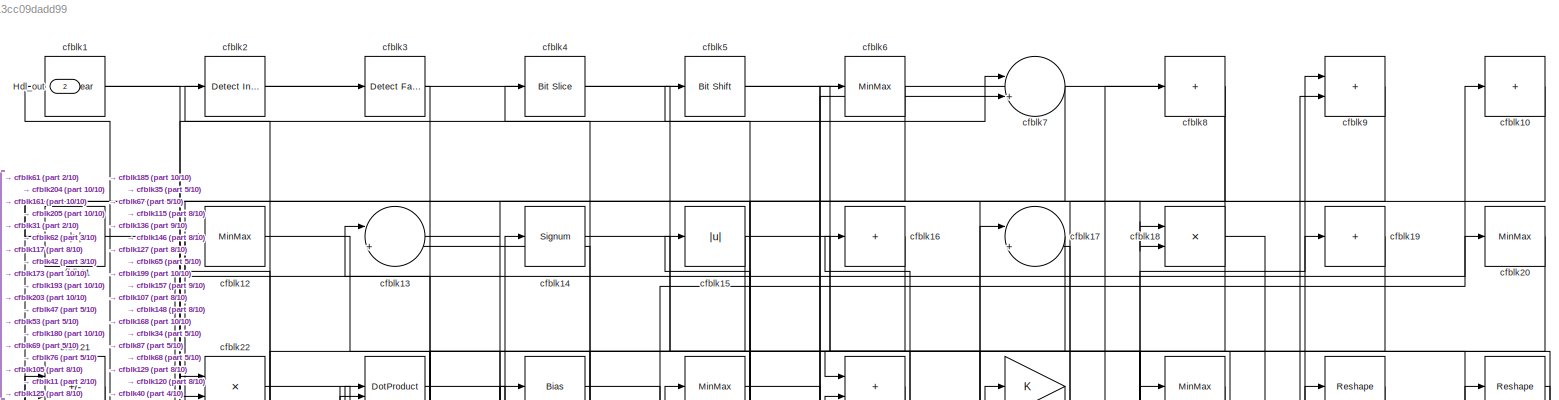
[diagram: root canvas - part 1/10, full width, top band]
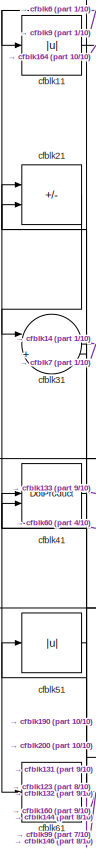
[diagram: root canvas - part 2/10, top left region]
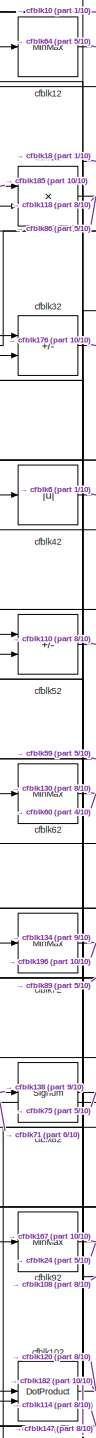
[diagram: root canvas - part 3/10, top left region]
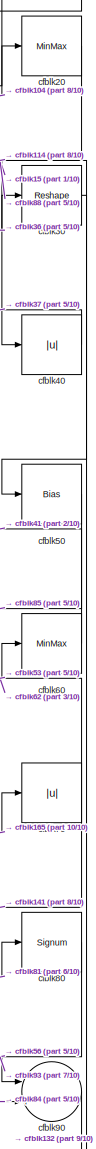
[diagram: root canvas - part 4/10, top right region]
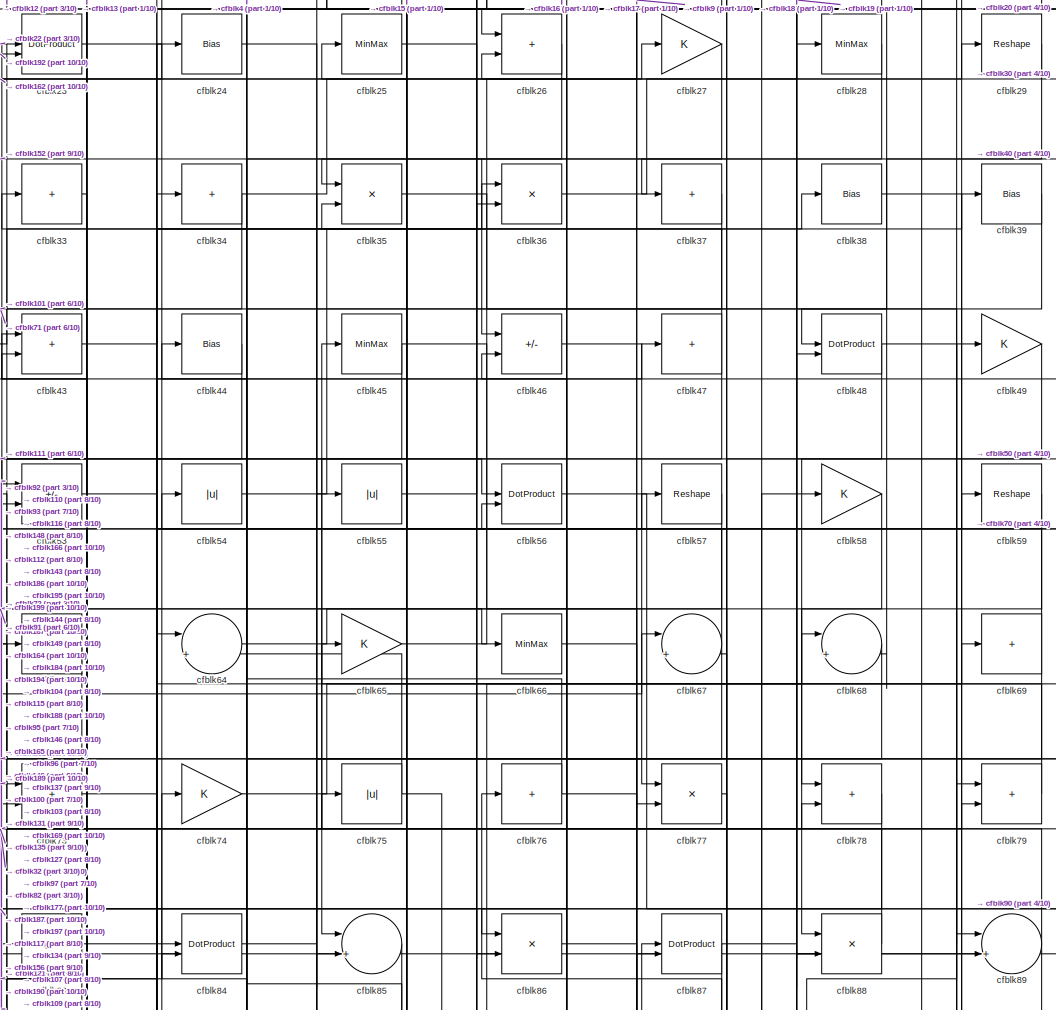
[diagram: root canvas - part 5/10, top center region]
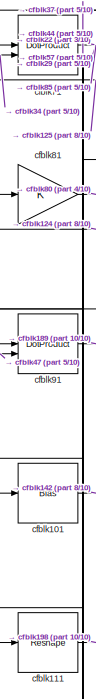
[diagram: root canvas - part 6/10, middle left region]
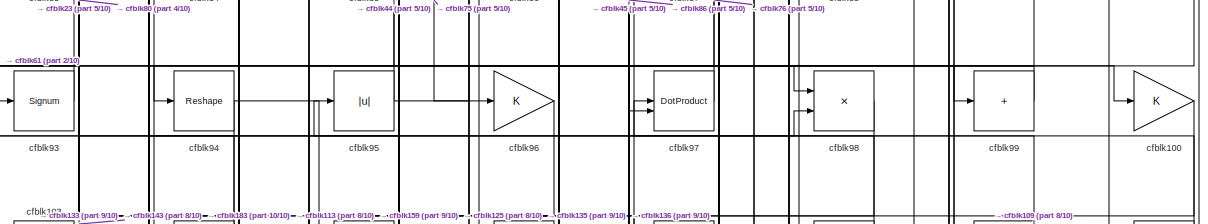
[diagram: root canvas - part 7/10, full width, middle band]
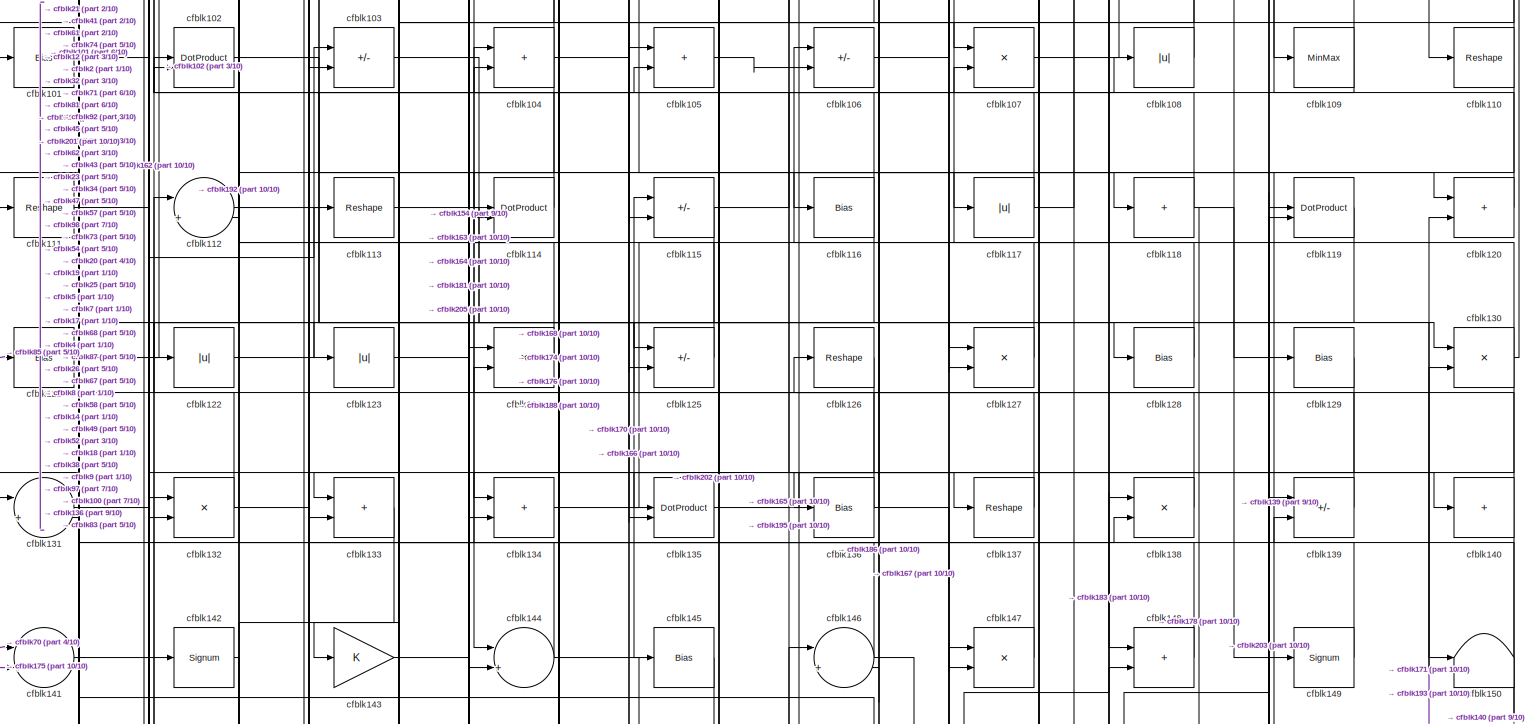
[diagram: root canvas - part 8/10, full width, middle band]
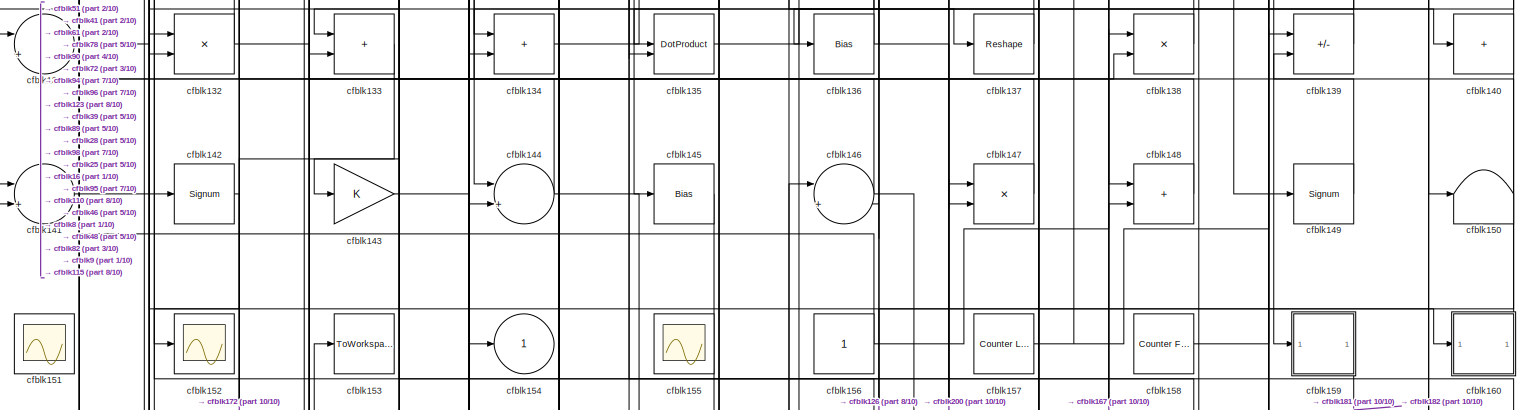
[diagram: root canvas - part 9/10, full width, bottom band]
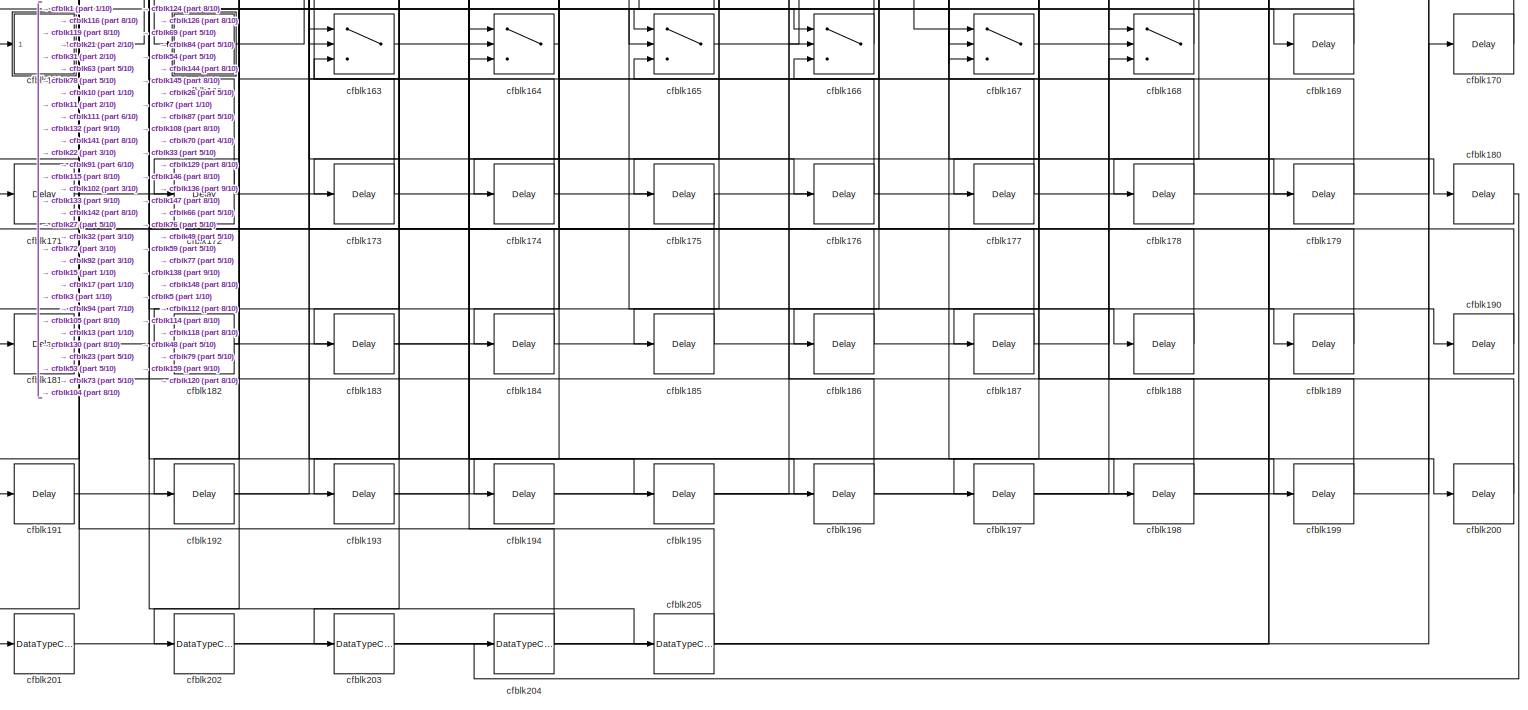
[diagram: root canvas - part 10/10, full width, bottom band]
MODEL slx_13cc09dadd99
KIND model
CONFIG AbsTol = auto
CONFIG EnableMultiTasking = off
CONFIG FixedStep = auto
CONFIG MaxStep = auto
CONFIG MinStep = auto
CONFIG RelTol = 1e-3
CONFIG SampleTimeConstraint = Unconstrained
CONFIG SolverName = VariableStepAuto
CONFIG StartTime = 0.0
CONFIG StopTime = 10.0
BLOCK [Outport] Hdl_out
  OutDataTypeStr = uint8
  Port = 2
BLOCK [Reference] cfblk1  REF=simulink/Logic and Bit
Operations/Bit Clear
  LibrarySourceBlock = hdlsllib/Logic and Bit\nOperations/Bit Clear
  SourceBlock = simulink/Logic and Bit\nOperations/Bit Clear
  SourceType = Bit Clear
BLOCK [Sum] cfblk10
  IconShape = rectangular
  Inputs = +
  OutDataTypeStr = uint8
BLOCK [Gain] cfblk100
  OutDataTypeStr = uint8
BLOCK [Bias] cfblk101
  Bias = 0.0
  SaturateOnIntegerOverflow = off
BLOCK [DotProduct] cfblk102
  OutDataTypeStr = uint8
BLOCK [Sum] cfblk103
  IconShape = rectangular
  Inputs = +-
  OutDataTypeStr = uint8
BLOCK [Sum] cfblk104
  IconShape = rectangular
  OutDataTypeStr = uint8
BLOCK [Sum] cfblk105
  IconShape = rectangular
  OutDataTypeStr = uint8
BLOCK [Sum] cfblk106
  IconShape = rectangular
  Inputs = +-
  OutDataTypeStr = uint8
BLOCK [Product] cfblk107
  Inputs = */
  OutDataTypeStr = uint8
  RndMeth = Zero
  SaturateOnIntegerOverflow = on
BLOCK [Abs] cfblk108
  OutDataTypeStr = uint8
  SaturateOnIntegerOverflow = off
BLOCK [MinMax] cfblk109
  OutDataTypeStr = uint8
BLOCK [Abs] cfblk11
  OutDataTypeStr = uint8
  SaturateOnIntegerOverflow = off
BLOCK [Reshape] cfblk110
BLOCK [Reshape] cfblk111
BLOCK [Sum] cfblk112
  Inputs = |++
  OutDataTypeStr = uint8
BLOCK [Reshape] cfblk113
BLOCK [DotProduct] cfblk114
  OutDataTypeStr = uint8
BLOCK [Sum] cfblk115
  IconShape = rectangular
  Inputs = +-
  OutDataTypeStr = uint8
BLOCK [Bias] cfblk116
  Bias = 0.0
  SaturateOnIntegerOverflow = off
BLOCK [Abs] cfblk117
  OutDataTypeStr = uint8
  SaturateOnIntegerOverflow = off
BLOCK [Sum] cfblk118
  IconShape = rectangular
  Inputs = +
  OutDataTypeStr = uint8
BLOCK [DotProduct] cfblk119
  OutDataTypeStr = uint8
BLOCK [MinMax] cfblk12
  OutDataTypeStr = uint8
BLOCK [Sum] cfblk120
  IconShape = rectangular
  OutDataTypeStr = uint8
BLOCK [Bias] cfblk121
  Bias = 0.0
  SaturateOnIntegerOverflow = off
BLOCK [Abs] cfblk122
  OutDataTypeStr = uint8
  SaturateOnIntegerOverflow = off
BLOCK [Abs] cfblk123
  OutDataTypeStr = uint8
  SaturateOnIntegerOverflow = off
BLOCK [Product] cfblk124
  Inputs = */
  OutDataTypeStr = uint8
  RndMeth = Zero
  SaturateOnIntegerOverflow = on
BLOCK [Sum] cfblk125
  IconShape = rectangular
  Inputs = +-
  OutDataTypeStr = uint8
BLOCK [Reshape] cfblk126
BLOCK [Product] cfblk127
  Inputs = */
  OutDataTypeStr = uint8
  RndMeth = Zero
  SaturateOnIntegerOverflow = on
BLOCK [Bias] cfblk128
  Bias = 0.0
  SaturateOnIntegerOverflow = off
BLOCK [Bias] cfblk129
  Bias = 0.0
  SaturateOnIntegerOverflow = off
BLOCK [Sum] cfblk13
  Inputs = |++
  OutDataTypeStr = uint8
BLOCK [Product] cfblk130
  Inputs = */
  OutDataTypeStr = uint8
  RndMeth = Zero
  SaturateOnIntegerOverflow = on
BLOCK [Sum] cfblk131
  Inputs = |++
  OutDataTypeStr = uint8
BLOCK [Product] cfblk132
  Inputs = */
  OutDataTypeStr = uint8
  RndMeth = Zero
  SaturateOnIntegerOverflow = on
BLOCK [Sum] cfblk133
  IconShape = rectangular
  OutDataTypeStr = uint8
BLOCK [Sum] cfblk134
  IconShape = rectangular
  OutDataTypeStr = uint8
BLOCK [DotProduct] cfblk135
  OutDataTypeStr = uint8
BLOCK [Bias] cfblk136
  Bias = 0.0
  SaturateOnIntegerOverflow = off
BLOCK [Reshape] cfblk137
BLOCK [Product] cfblk138
  Inputs = */
  OutDataTypeStr = uint8
  RndMeth = Zero
  SaturateOnIntegerOverflow = on
BLOCK [Sum] cfblk139
  IconShape = rectangular
  Inputs = +-
  OutDataTypeStr = uint8
BLOCK [Signum] cfblk14
BLOCK [Sum] cfblk140
  IconShape = rectangular
  Inputs = +
  OutDataTypeStr = uint8
BLOCK [Sum] cfblk141
  Inputs = |++
  OutDataTypeStr = uint8
BLOCK [Signum] cfblk142
BLOCK [Gain] cfblk143
  OutDataTypeStr = uint8
BLOCK [Sum] cfblk144
  Inputs = |++
  OutDataTypeStr = uint8
BLOCK [Bias] cfblk145
  Bias = 0.0
  SaturateOnIntegerOverflow = off
BLOCK [Sum] cfblk146
  Inputs = |++
  OutDataTypeStr = uint8
BLOCK [Product] cfblk147
  Inputs = */
  OutDataTypeStr = uint8
  RndMeth = Zero
  SaturateOnIntegerOverflow = on
BLOCK [Sum] cfblk148
  IconShape = rectangular
  OutDataTypeStr = uint8
BLOCK [Signum] cfblk149
BLOCK [Abs] cfblk15
  OutDataTypeStr = uint8
  SaturateOnIntegerOverflow = off
BLOCK [Terminator] cfblk150
BLOCK [Scope] cfblk151
  Floating = on
  NumInputPorts = 1
  ScopeSpecificationString = Simulink.scopes.TimeScopeBlockCfg('CurrentConfiguration', extmgr.ConfigurationSet(extmgr.Configuration('Core','General UI',true,'FigureColor',[0.156862745098039 0.156862745098039 0.156862745098039]),extmgr.Configuration('Core','Source UI',true),extmgr.Configuration('Sources','WiredSimulink',true,'DataLoggingVariableName','ScopeData1','DataLoggingSaveFormat','StructureWithTime','DataLoggingLimitDat...<+2713ch>
BLOCK [Scope] cfblk152
  Floating = off
  NumInputPorts = 1
  ScopeSpecificationString = Simulink.scopes.TimeScopeBlockCfg('CurrentConfiguration', extmgr.ConfigurationSet(extmgr.Configuration('Core','General UI',true),extmgr.Configuration('Core','Source UI',true),extmgr.Configuration('Sources','WiredSimulink',true,'DataLoggingVariableName','ScopeData2','DataLoggingSaveFormat','Array','DataLoggingLimitDataPoints',true,'DataLoggingDecimation','1'),extmgr.Configuration('Visuals','Time Do...<+868ch>
BLOCK [ToWorkspace] cfblk153
  MaxDataPoints = inf
  SampleTime = -1
  SaveFormat = Timeseries
  VariableName = simout
BLOCK [Outport] cfblk154
  OutDataTypeStr = uint8
  VectorParamsAs1DForOutWhenUnconnected = off
BLOCK [Scope] cfblk155
  Floating = on
  NumInputPorts = 1
  ScopeSpecificationString = Simulink.scopes.TimeScopeBlockCfg('CurrentConfiguration', extmgr.ConfigurationSet(extmgr.Configuration('Core','General UI',true,'FigureColor',[0.156862745098039 0.156862745098039 0.156862745098039]),extmgr.Configuration('Core','Source UI',true),extmgr.Configuration('Sources','WiredSimulink',true,'DataLoggingVariableName','ScopeData1','DataLoggingSaveFormat','StructureWithTime','DataLoggingLimitDat...<+2713ch>
BLOCK [Constant] cfblk156
  OutDataTypeStr = uint8
  SampleTime = -1
BLOCK [Reference] cfblk157  REF=hdlsllib/Sources/Counter
Limited
  SourceBlock = hdlsllib/Sources/Counter\nLimited
  SourceType = Counter Limited
BLOCK [Reference] cfblk158  REF=hdlsllib/Sources/Counter
Free-Running
  SourceBlock = hdlsllib/Sources/Counter\nFree-Running
  SourceType = Counter Free-Running
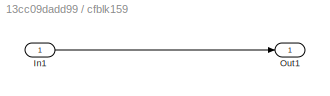
BLOCK [SubSystem] cfblk159
  LibrarySourceBlock = hdlsllib/Ports &\nSubsystems/Subsystem
BLOCK [Inport] cfblk159/In1
BLOCK [Outport] cfblk159/Out1
BLOCK [Sum] cfblk16
  IconShape = rectangular
  Inputs = +
  OutDataTypeStr = uint8
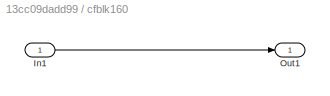
BLOCK [SubSystem] cfblk160
  LibrarySourceBlock = hdlsllib/Ports &\nSubsystems/Subsystem
BLOCK [Inport] cfblk160/In1
BLOCK [Outport] cfblk160/Out1
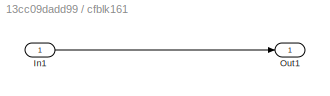
BLOCK [SubSystem] cfblk161
  LibrarySourceBlock = hdlsllib/Ports &\nSubsystems/Subsystem
BLOCK [Inport] cfblk161/In1
BLOCK [Outport] cfblk161/Out1
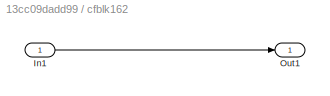
BLOCK [SubSystem] cfblk162
  LibrarySourceBlock = hdlsllib/Ports &\nSubsystems/Subsystem
BLOCK [Inport] cfblk162/In1
BLOCK [Outport] cfblk162/Out1
BLOCK [Switch] cfblk163
  InputSameDT = off
  OutDataTypeStr = uint8
  SaturateOnIntegerOverflow = off
BLOCK [Switch] cfblk164
  InputSameDT = off
  OutDataTypeStr = uint8
  SaturateOnIntegerOverflow = off
BLOCK [Switch] cfblk165
  InputSameDT = off
  OutDataTypeStr = uint8
  SaturateOnIntegerOverflow = off
BLOCK [Switch] cfblk166
  InputSameDT = off
  OutDataTypeStr = uint8
  SaturateOnIntegerOverflow = off
BLOCK [Switch] cfblk167
  InputSameDT = off
  OutDataTypeStr = uint8
  SaturateOnIntegerOverflow = off
BLOCK [Switch] cfblk168
  InputSameDT = off
  OutDataTypeStr = uint8
  SaturateOnIntegerOverflow = off
BLOCK [Delay] cfblk169
  InputPortMap = u0
  SampleTime = 1
BLOCK [Sum] cfblk17
  Inputs = |++
  OutDataTypeStr = uint8
BLOCK [Delay] cfblk170
  InputPortMap = u0
  SampleTime = 1
BLOCK [Delay] cfblk171
  InputPortMap = u0
  SampleTime = 1
BLOCK [Delay] cfblk172
  InputPortMap = u0
  SampleTime = 1
BLOCK [Delay] cfblk173
  InputPortMap = u0
  SampleTime = 1
BLOCK [Delay] cfblk174
  InputPortMap = u0
  SampleTime = 1
BLOCK [Delay] cfblk175
  InputPortMap = u0
  SampleTime = 1
BLOCK [Delay] cfblk176
  InputPortMap = u0
  SampleTime = 1
BLOCK [Delay] cfblk177
  InputPortMap = u0
  SampleTime = 1
BLOCK [Delay] cfblk178
  InputPortMap = u0
  SampleTime = 1
BLOCK [Delay] cfblk179
  InputPortMap = u0
  SampleTime = 1
BLOCK [Product] cfblk18
  Inputs = */
  OutDataTypeStr = uint8
  RndMeth = Zero
  SaturateOnIntegerOverflow = on
BLOCK [Delay] cfblk180
  InputPortMap = u0
  SampleTime = 1
BLOCK [Delay] cfblk181
  InputPortMap = u0
  SampleTime = 1
BLOCK [Delay] cfblk182
  InputPortMap = u0
  SampleTime = 1
BLOCK [Delay] cfblk183
  InputPortMap = u0
  SampleTime = 1
BLOCK [Delay] cfblk184
  InputPortMap = u0
  SampleTime = 1
BLOCK [Delay] cfblk185
  InputPortMap = u0
  SampleTime = 1
BLOCK [Delay] cfblk186
  InputPortMap = u0
  SampleTime = 1
BLOCK [Delay] cfblk187
  InputPortMap = u0
  SampleTime = 1
BLOCK [Delay] cfblk188
  InputPortMap = u0
  SampleTime = 1
BLOCK [Delay] cfblk189
  InputPortMap = u0
  SampleTime = 1
BLOCK [Sum] cfblk19
  IconShape = rectangular
  Inputs = +
  OutDataTypeStr = uint8
BLOCK [Delay] cfblk190
  InputPortMap = u0
  SampleTime = 1
BLOCK [Delay] cfblk191
  InputPortMap = u0
  SampleTime = 1
BLOCK [Delay] cfblk192
  InputPortMap = u0
  SampleTime = 1
BLOCK [Delay] cfblk193
  InputPortMap = u0
  SampleTime = 1
BLOCK [Delay] cfblk194
  InputPortMap = u0
  SampleTime = 1
BLOCK [Delay] cfblk195
  InputPortMap = u0
  SampleTime = 1
BLOCK [Delay] cfblk196
  InputPortMap = u0
  SampleTime = 1
BLOCK [Delay] cfblk197
  InputPortMap = u0
  SampleTime = 1
BLOCK [Delay] cfblk198
  InputPortMap = u0
  SampleTime = 1
BLOCK [Delay] cfblk199
  InputPortMap = u0
  SampleTime = 1
BLOCK [Reference] cfblk2  REF=simulink/Logic and Bit
Operations/Detect
Increase
  LibrarySourceBlock = hdlsllib/Logic and Bit\nOperations/Detect\nIncrease
  SourceBlock = simulink/Logic and Bit\nOperations/Detect\nIncrease
  SourceType = Detect Increase
BLOCK [MinMax] cfblk20
  OutDataTypeStr = uint8
BLOCK [Delay] cfblk200
  InputPortMap = u0
  SampleTime = 1
BLOCK [DataTypeConversion] cfblk201
  OutDataTypeStr = uint8
  RndMeth = Floor
  SaturateOnIntegerOverflow = off
BLOCK [DataTypeConversion] cfblk202
  OutDataTypeStr = uint8
  RndMeth = Floor
  SaturateOnIntegerOverflow = off
BLOCK [DataTypeConversion] cfblk203
  OutDataTypeStr = uint8
  RndMeth = Floor
  SaturateOnIntegerOverflow = off
BLOCK [DataTypeConversion] cfblk204
  OutDataTypeStr = uint8
  RndMeth = Floor
  SaturateOnIntegerOverflow = off
BLOCK [DataTypeConversion] cfblk205
  OutDataTypeStr = uint8
  RndMeth = Floor
  SaturateOnIntegerOverflow = off
BLOCK [Sum] cfblk21
  IconShape = rectangular
  Inputs = +-
  OutDataTypeStr = uint8
BLOCK [Product] cfblk22
  Inputs = */
  OutDataTypeStr = uint8
  RndMeth = Zero
  SaturateOnIntegerOverflow = on
BLOCK [DotProduct] cfblk23
  OutDataTypeStr = uint8
BLOCK [Bias] cfblk24
  Bias = 0.0
  SaturateOnIntegerOverflow = off
BLOCK [MinMax] cfblk25
  OutDataTypeStr = uint8
BLOCK [Sum] cfblk26
  IconShape = rectangular
  OutDataTypeStr = uint8
BLOCK [Gain] cfblk27
  OutDataTypeStr = uint8
BLOCK [MinMax] cfblk28
  OutDataTypeStr = uint8
BLOCK [Reshape] cfblk29
BLOCK [Reference] cfblk3  REF=hdlsllib/Logic and Bit
Operations/Detect Fall
Negative
  SourceBlock = hdlsllib/Logic and Bit\nOperations/Detect Fall\nNegative
  SourceType = Detect Fall Negative
BLOCK [Reshape] cfblk30
BLOCK [Sum] cfblk31
  Inputs = |++
  OutDataTypeStr = uint8
BLOCK [Sum] cfblk32
  IconShape = rectangular
  Inputs = +-
  OutDataTypeStr = uint8
BLOCK [Sum] cfblk33
  IconShape = rectangular
  Inputs = +
  OutDataTypeStr = uint8
BLOCK [Sum] cfblk34
  IconShape = rectangular
  Inputs = +
  OutDataTypeStr = uint8
BLOCK [Product] cfblk35
  Inputs = */
  OutDataTypeStr = uint8
  RndMeth = Zero
  SaturateOnIntegerOverflow = on
BLOCK [Product] cfblk36
  Inputs = */
  OutDataTypeStr = uint8
  RndMeth = Zero
  SaturateOnIntegerOverflow = on
BLOCK [Sum] cfblk37
  IconShape = rectangular
  Inputs = +
  OutDataTypeStr = uint8
BLOCK [Bias] cfblk38
  Bias = 0.0
  SaturateOnIntegerOverflow = off
BLOCK [Bias] cfblk39
  Bias = 0.0
  SaturateOnIntegerOverflow = off
BLOCK [Reference] cfblk4  REF=hdlsllib/Logic and Bit
Operations/Bit Slice
  SourceBlock = hdlsllib/Logic and Bit\nOperations/Bit Slice
  SourceType = Bit Slice
BLOCK [Abs] cfblk40
  OutDataTypeStr = uint8
  SaturateOnIntegerOverflow = off
BLOCK [DotProduct] cfblk41
  OutDataTypeStr = uint8
BLOCK [Abs] cfblk42
  OutDataTypeStr = uint8
  SaturateOnIntegerOverflow = off
BLOCK [Sum] cfblk43
  IconShape = rectangular
  OutDataTypeStr = uint8
BLOCK [Bias] cfblk44
  Bias = 0.0
  SaturateOnIntegerOverflow = off
BLOCK [MinMax] cfblk45
  OutDataTypeStr = uint8
BLOCK [Sum] cfblk46
  IconShape = rectangular
  Inputs = +-
  OutDataTypeStr = uint8
BLOCK [Sum] cfblk47
  IconShape = rectangular
  Inputs = +
  OutDataTypeStr = uint8
BLOCK [DotProduct] cfblk48
  OutDataTypeStr = uint8
BLOCK [Gain] cfblk49
  OutDataTypeStr = uint8
BLOCK [Reference] cfblk5  REF=hdlsllib/Logic and Bit
Operations/Bit Shift
  SourceBlock = hdlsllib/Logic and Bit\nOperations/Bit Shift
  SourceType = Bit Shift
BLOCK [Bias] cfblk50
  Bias = 0.0
  SaturateOnIntegerOverflow = off
BLOCK [Abs] cfblk51
  OutDataTypeStr = uint8
  SaturateOnIntegerOverflow = off
BLOCK [Sum] cfblk52
  IconShape = rectangular
  Inputs = +-
  OutDataTypeStr = uint8
BLOCK [Sum] cfblk53
  IconShape = rectangular
  Inputs = +-
  OutDataTypeStr = uint8
BLOCK [Abs] cfblk54
  OutDataTypeStr = uint8
  SaturateOnIntegerOverflow = off
BLOCK [Abs] cfblk55
  OutDataTypeStr = uint8
  SaturateOnIntegerOverflow = off
BLOCK [DotProduct] cfblk56
  OutDataTypeStr = uint8
BLOCK [Reshape] cfblk57
BLOCK [Gain] cfblk58
  OutDataTypeStr = uint8
BLOCK [Reshape] cfblk59
BLOCK [MinMax] cfblk6
  OutDataTypeStr = uint8
BLOCK [MinMax] cfblk60
  OutDataTypeStr = uint8
BLOCK [Reshape] cfblk61
BLOCK [MinMax] cfblk62
  OutDataTypeStr = uint8
BLOCK [Bias] cfblk63
  Bias = 0.0
  SaturateOnIntegerOverflow = off
BLOCK [Sum] cfblk64
  Inputs = |++
  OutDataTypeStr = uint8
BLOCK [Gain] cfblk65
  OutDataTypeStr = uint8
BLOCK [MinMax] cfblk66
  OutDataTypeStr = uint8
BLOCK [Sum] cfblk67
  Inputs = |++
  OutDataTypeStr = uint8
BLOCK [Sum] cfblk68
  Inputs = |++
  OutDataTypeStr = uint8
BLOCK [Sum] cfblk69
  IconShape = rectangular
  Inputs = +
  OutDataTypeStr = uint8
BLOCK [Sum] cfblk7
  Inputs = |++
  OutDataTypeStr = uint8
BLOCK [Abs] cfblk70
  OutDataTypeStr = uint8
  SaturateOnIntegerOverflow = off
BLOCK [DotProduct] cfblk71
  OutDataTypeStr = uint8
BLOCK [MinMax] cfblk72
  OutDataTypeStr = uint8
BLOCK [Sum] cfblk73
  IconShape = rectangular
  OutDataTypeStr = uint8
BLOCK [Gain] cfblk74
  OutDataTypeStr = uint8
BLOCK [Abs] cfblk75
  OutDataTypeStr = uint8
  SaturateOnIntegerOverflow = off
BLOCK [Sum] cfblk76
  IconShape = rectangular
  Inputs = +
  OutDataTypeStr = uint8
BLOCK [Product] cfblk77
  Inputs = */
  OutDataTypeStr = uint8
  RndMeth = Zero
  SaturateOnIntegerOverflow = on
BLOCK [Sum] cfblk78
  IconShape = rectangular
  OutDataTypeStr = uint8
BLOCK [Sum] cfblk79
  IconShape = rectangular
  OutDataTypeStr = uint8
BLOCK [Sum] cfblk8
  IconShape = rectangular
  Inputs = +
  OutDataTypeStr = uint8
BLOCK [Signum] cfblk80
BLOCK [Gain] cfblk81
  OutDataTypeStr = uint8
BLOCK [Signum] cfblk82
BLOCK [Signum] cfblk83
BLOCK [DotProduct] cfblk84
  OutDataTypeStr = uint8
BLOCK [Sum] cfblk85
  Inputs = |++
  OutDataTypeStr = uint8
BLOCK [Product] cfblk86
  Inputs = */
  OutDataTypeStr = uint8
  RndMeth = Zero
  SaturateOnIntegerOverflow = on
BLOCK [DotProduct] cfblk87
  OutDataTypeStr = uint8
BLOCK [Product] cfblk88
  Inputs = */
  OutDataTypeStr = uint8
  RndMeth = Zero
  SaturateOnIntegerOverflow = on
BLOCK [Sum] cfblk89
  Inputs = |++
  OutDataTypeStr = uint8
BLOCK [Sum] cfblk9
  IconShape = rectangular
  OutDataTypeStr = uint8
BLOCK [Sum] cfblk90
  Inputs = |++
  OutDataTypeStr = uint8
BLOCK [DotProduct] cfblk91
  OutDataTypeStr = uint8
BLOCK [MinMax] cfblk92
  OutDataTypeStr = uint8
BLOCK [Signum] cfblk93
BLOCK [Reshape] cfblk94
BLOCK [Abs] cfblk95
  OutDataTypeStr = uint8
  SaturateOnIntegerOverflow = off
BLOCK [Gain] cfblk96
  OutDataTypeStr = uint8
BLOCK [DotProduct] cfblk97
  OutDataTypeStr = uint8
BLOCK [Product] cfblk98
  Inputs = */
  OutDataTypeStr = uint8
  RndMeth = Zero
  SaturateOnIntegerOverflow = on
BLOCK [Sum] cfblk99
  IconShape = rectangular
  Inputs = +
  OutDataTypeStr = uint8
LINE cfblk100:1 -> cfblk143:1
LINE cfblk101:1 -> cfblk142:1
NET cfblk102:1 -> cfblk120:1, cfblk145:1
NET cfblk103:1 -> cfblk150:1, cfblk57:1
NET cfblk104:1 -> cfblk122:1, cfblk20:1, cfblk73:2
NET cfblk105:1 -> cfblk106:2, cfblk5:1
LINE cfblk106:1 -> cfblk87:2
LINE cfblk107:1 -> cfblk49:1
LINE cfblk108:1 -> cfblk52:1
NET cfblk109:1 -> cfblk107:2, cfblk97:1
LINE cfblk10:1 -> cfblk62:1
NET cfblk110:1 -> cfblk136:1, cfblk83:1
LINE cfblk111:1 -> cfblk198:1
NET cfblk112:1 -> cfblk12:1, cfblk147:2, cfblk34:1
NET cfblk113:1 -> cfblk128:1, cfblk98:2
LINE cfblk114:1 -> cfblk52:2
NET cfblk115:1 -> cfblk162:1, cfblk7:2
NET cfblk116:1 -> cfblk191:1, cfblk43:1
NET cfblk117:1 -> cfblk2:1, cfblk58:1, cfblk92:1
NET cfblk118:1 -> cfblk149:1, cfblk178:1, cfblk32:2
LINE cfblk119:1 -> cfblk201:1
LINE cfblk11:1 -> cfblk164:2
LINE cfblk120:1 -> cfblk9:1
NET cfblk121:1 -> cfblk67:1, cfblk74:1
LINE cfblk122:1 -> cfblk103:1
LINE cfblk123:1 -> cfblk154:1
LINE cfblk124:1 -> cfblk81:1
LINE cfblk125:1 -> cfblk71:1
LINE cfblk126:1 -> cfblk174:1
LINE cfblk127:1 -> cfblk87:1
LINE cfblk128:1 -> cfblk106:1
LINE cfblk129:1 -> cfblk186:1
LINE cfblk12:1 -> cfblk64:1
NET cfblk130:1 -> cfblk164:3, cfblk26:1, cfblk67:2
LINE cfblk131:1 -> cfblk78:2
NET cfblk132:1 -> cfblk138:2, cfblk51:1
LINE cfblk133:1 -> cfblk172:1
LINE cfblk134:1 -> cfblk28:1
LINE cfblk135:1 -> cfblk137:1
NET cfblk136:1 -> cfblk16:1, cfblk200:1, cfblk95:1
LINE cfblk137:1 -> cfblk46:2
LINE cfblk138:1 -> cfblk82:1
LINE cfblk139:1 -> cfblk115:1
NET cfblk13:1 -> cfblk180:1, cfblk18:2
NET cfblk140:1 -> cfblk126:1, cfblk153:1
NET cfblk141:1 -> cfblk113:1, cfblk163:2
LINE cfblk142:1 -> cfblk192:1
LINE cfblk143:1 -> cfblk47:1
NET cfblk144:1 -> cfblk166:1, cfblk41:2
LINE cfblk145:1 -> cfblk202:1
NET cfblk146:1 -> cfblk167:1, cfblk21:1, cfblk25:1
LINE cfblk147:1 -> cfblk102:1
NET cfblk148:1 -> cfblk104:1, cfblk43:2
LINE cfblk149:1 -> cfblk54:1
LINE cfblk14:1 -> cfblk148:1
NET cfblk156:1 -> cfblk131:2, cfblk48:2
NET cfblk157:1 -> cfblk8:1, cfblk9:2
LINE cfblk158:1 -> cfblk139:1
LINE cfblk159/In1:1 -> cfblk159/Out1:1
NET cfblk159:1 -> cfblk181:1, cfblk182:1
NET cfblk15:1 -> cfblk193:1, cfblk40:1
LINE cfblk160/In1:1 -> cfblk160/Out1:1
LINE cfblk160:1 -> cfblk139:2
LINE cfblk161/In1:1 -> cfblk161/Out1:1
LINE cfblk161:1 -> cfblk10:1
LINE cfblk162/In1:1 -> cfblk162/Out1:1
LINE cfblk162:1 -> cfblk27:1
LINE cfblk163:1 -> cfblk105:2
LINE cfblk164:1 -> cfblk84:2
NET cfblk165:1 -> cfblk108:1, cfblk70:1
LINE cfblk166:1 -> cfblk33:1
LINE cfblk167:1 -> cfblk138:1
NET cfblk168:1 -> cfblk112:1, cfblk114:2
LINE cfblk169:1 -> cfblk165:2
LINE cfblk16:1 -> cfblk53:1
LINE cfblk170:1 -> cfblk105:1
LINE cfblk171:1 -> cfblk130:2
LINE cfblk172:1 -> cfblk132:1
LINE cfblk173:1 -> cfblk163:1
LINE cfblk174:1 -> cfblk112:2
LINE cfblk175:1 -> cfblk141:2
LINE cfblk176:1 -> cfblk124:2
LINE cfblk177:1 -> cfblk166:3
LINE cfblk178:1 -> cfblk147:1
LINE cfblk179:1 -> cfblk165:3
NET cfblk17:1 -> cfblk146:2, cfblk173:1
LINE cfblk180:1 -> cfblk204:1
LINE cfblk181:1 -> cfblk144:2
LINE cfblk182:1 -> cfblk102:2
LINE cfblk183:1 -> cfblk148:2
LINE cfblk184:1 -> cfblk163:3
LINE cfblk185:1 -> cfblk22:1
LINE cfblk186:1 -> cfblk84:1
LINE cfblk187:1 -> cfblk26:2
LINE cfblk188:1 -> cfblk104:2
LINE cfblk189:1 -> cfblk73:1
NET cfblk18:1 -> Hdl_out:1, cfblk129:1, cfblk42:1
LINE cfblk190:1 -> cfblk21:2
LINE cfblk191:1 -> cfblk164:1
LINE cfblk192:1 -> cfblk23:2
LINE cfblk193:1 -> cfblk120:2
LINE cfblk194:1 -> cfblk79:1
LINE cfblk195:1 -> cfblk146:1
LINE cfblk196:1 -> cfblk166:2
LINE cfblk197:1 -> cfblk168:3
LINE cfblk198:1 -> cfblk168:2
LINE cfblk199:1 -> cfblk17:2
NET cfblk19:1 -> cfblk125:1, cfblk68:2
LINE cfblk1:1 -> cfblk205:1
LINE cfblk200:1 -> cfblk31:2
LINE cfblk201:1 -> cfblk170:1
LINE cfblk202:1 -> cfblk119:1
LINE cfblk203:1 -> cfblk119:2
LINE cfblk204:1 -> cfblk1:1
LINE cfblk205:1 -> cfblk124:1
NET cfblk20:1 -> cfblk114:1, cfblk88:2
LINE cfblk21:1 -> cfblk31:1
NET cfblk22:1 -> cfblk118:1, cfblk86:2
NET cfblk23:1 -> cfblk144:1, cfblk167:3
LINE cfblk24:1 -> cfblk77:2
LINE cfblk25:1 -> cfblk140:1
LINE cfblk26:1 -> cfblk165:1
NET cfblk27:1 -> cfblk184:1, cfblk46:1
LINE cfblk28:1 -> cfblk152:1
LINE cfblk29:1 -> cfblk48:1
LINE cfblk2:1 -> cfblk3:1
LINE cfblk30:1 -> cfblk50:1
NET cfblk31:1 -> cfblk14:1, cfblk7:1
LINE cfblk32:1 -> cfblk176:1
LINE cfblk33:1 -> cfblk63:1
NET cfblk34:1 -> cfblk18:1, cfblk55:1, cfblk71:2
LINE cfblk35:1 -> cfblk89:1
LINE cfblk36:1 -> cfblk30:1
LINE cfblk37:1 -> cfblk101:1
LINE cfblk38:1 -> cfblk109:1
LINE cfblk39:1 -> cfblk134:1
LINE cfblk3:1 -> cfblk203:1
LINE cfblk40:1 -> cfblk37:1
LINE cfblk41:1 -> cfblk133:2
LINE cfblk42:1 -> cfblk6:1
LINE cfblk43:1 -> cfblk39:1
LINE cfblk44:1 -> cfblk111:1
NET cfblk45:1 -> cfblk103:2, cfblk97:2
LINE cfblk46:1 -> cfblk77:1
NET cfblk47:1 -> cfblk13:1, cfblk91:2
NET cfblk48:1 -> cfblk190:1, cfblk88:1
LINE cfblk49:1 -> cfblk187:1
LINE cfblk4:1 -> cfblk127:1
LINE cfblk50:1 -> cfblk85:1
LINE cfblk51:1 -> cfblk131:1
LINE cfblk52:1 -> cfblk110:1
NET cfblk53:1 -> cfblk199:1, cfblk56:1
NET cfblk54:1 -> cfblk188:1, cfblk38:1
LINE cfblk55:1 -> cfblk36:2
LINE cfblk56:1 -> cfblk90:1
LINE cfblk57:1 -> cfblk91:1
LINE cfblk58:1 -> cfblk78:1
NET cfblk59:1 -> cfblk197:1, cfblk72:1
NET cfblk5:1 -> cfblk107:1, cfblk168:1
LINE cfblk60:1 -> cfblk41:1
NET cfblk61:1 -> cfblk123:1, cfblk160:1, cfblk99:1
NET cfblk62:1 -> cfblk130:1, cfblk60:1
LINE cfblk63:1 -> cfblk161:1
LINE cfblk64:1 -> cfblk66:1
LINE cfblk65:1 -> cfblk17:1
LINE cfblk66:1 -> cfblk169:1
NET cfblk67:1 -> cfblk115:2, cfblk15:1
NET cfblk68:1 -> cfblk116:1, cfblk86:1
NET cfblk69:1 -> cfblk194:1, cfblk35:2, cfblk4:1
LINE cfblk6:1 -> cfblk61:1
NET cfblk70:1 -> cfblk141:1, cfblk53:2
NET cfblk71:1 -> cfblk22:2, cfblk29:1, cfblk85:2
NET cfblk72:1 -> cfblk134:2, cfblk196:1
NET cfblk73:1 -> cfblk195:1, cfblk69:1
LINE cfblk74:1 -> cfblk68:1
NET cfblk75:1 -> cfblk64:2, cfblk96:1
NET cfblk76:1 -> cfblk13:2, cfblk179:1
LINE cfblk77:1 -> cfblk177:1
LINE cfblk78:1 -> cfblk171:1
LINE cfblk79:1 -> cfblk65:1
LINE cfblk7:1 -> cfblk185:1
LINE cfblk80:1 -> cfblk93:1
LINE cfblk81:1 -> cfblk80:1
LINE cfblk82:1 -> cfblk75:1
NET cfblk83:1 -> cfblk36:1, cfblk59:1
NET cfblk84:1 -> cfblk79:2, cfblk90:2
LINE cfblk85:1 -> cfblk121:1
LINE cfblk86:1 -> cfblk100:1
NET cfblk87:1 -> cfblk175:1, cfblk19:1, cfblk89:2
LINE cfblk88:1 -> cfblk45:1
NET cfblk89:1 -> cfblk135:2, cfblk32:1, cfblk56:2
LINE cfblk8:1 -> cfblk117:1
LINE cfblk90:1 -> cfblk132:2
LINE cfblk91:1 -> cfblk189:1
NET cfblk92:1 -> cfblk167:2, cfblk24:1
LINE cfblk93:1 -> cfblk23:1
NET cfblk94:1 -> cfblk159:1, cfblk183:1
NET cfblk95:1 -> cfblk44:1, cfblk98:1
LINE cfblk96:1 -> cfblk133:1
LINE cfblk97:1 -> cfblk76:1
NET cfblk98:1 -> cfblk125:2, cfblk135:1
LINE cfblk99:1 -> cfblk94:1
NET cfblk9:1 -> cfblk11:1, cfblk127:2, cfblk35:1
note: NET lines group one-source signal fan-out (src -> all destinations, sorted); 1:1 wires keep LINE
